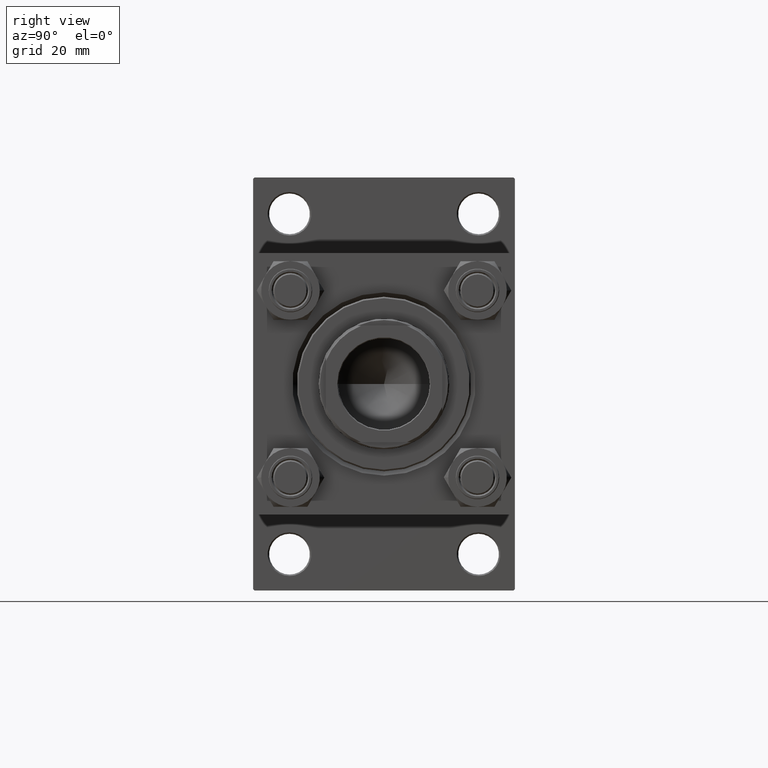
[diagram: clean part render]
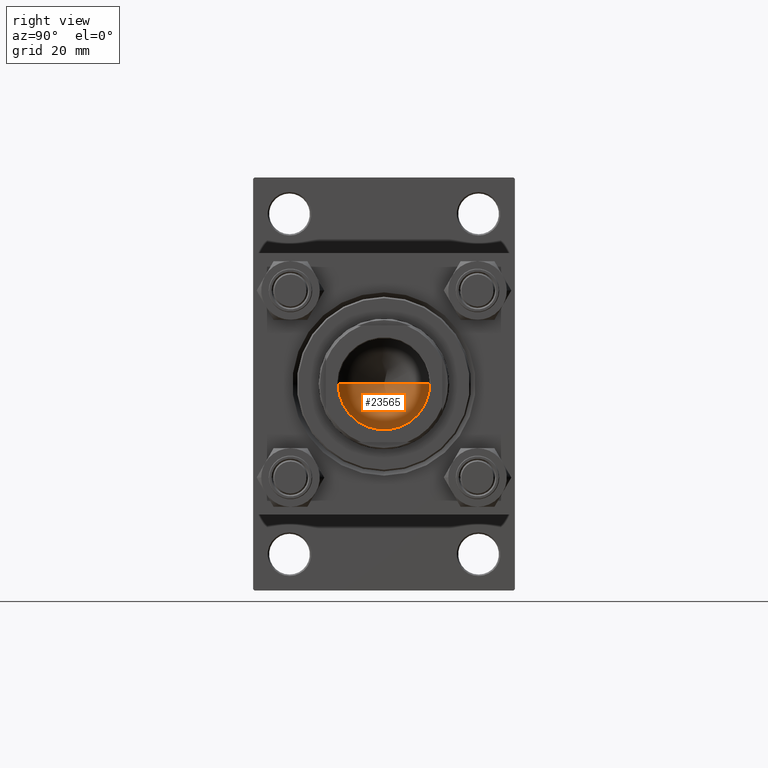
[diagram: same view with one face highlighted and labeled with its STEP entity id]
A machine part, right view. The second image highlights one B-rep face of the part: STEP entity #23565.
In plain terms, the highlighted conical surface has half-angle 59 deg.
Its self-contained STEP definition (entity closure, byte-faithful):
#1902 = CARTESIAN_POINT ( 'NONE',  ( -1.584115414415908206E-14, 0.000000000000000000, 85.53644525031592138 ) ) ;
#2390 = AXIS2_PLACEMENT_3D ( 'NONE', #41454, #25816, #41710 ) ;
#3417 = ORIENTED_EDGE ( 'NONE', *, *, #11954, .F. ) ;
#4929 = VERTEX_POINT ( 'NONE', #34229 ) ;
#5370 = DIRECTION ( 'NONE',  ( 0.8571673007021115565, 0.000000000000000000, 0.5150380749100554878 ) ) ;
#9623 = LINE ( 'NONE', #16222, #43265 ) ;
#11954 = EDGE_CURVE ( 'NONE', #16549, #27129, #9623, .T. ) ;
#13709 = CIRCLE ( 'NONE', #2390, 15.74999999999998934 ) ;
#14286 = ORIENTED_EDGE ( 'NONE', *, *, #23346, .T. ) ;
#16222 = CARTESIAN_POINT ( 'NONE',  ( -15.74999999999998934, 1.928818708657080161E-15, 95.00000000000001421 ) ) ;
#16549 = VERTEX_POINT ( 'NONE', #1902 ) ;
#20722 = DIRECTION ( 'NONE',  ( 1.000000000000000000, 0.000000000000000000, 0.000000000000000000 ) ) ;
#21392 = EDGE_CURVE ( 'NONE', #16549, #4929, #43760, .T. ) ;
#23346 = EDGE_CURVE ( 'NONE', #4929, #27129, #13709, .T. ) ;
#23565 = ADVANCED_FACE ( 'NONE', ( #31860 ), #37082, .F. ) ;
#24901 = CARTESIAN_POINT ( 'NONE',  ( -15.74999999999998934, 1.928818708657080161E-15, 95.00000000000001421 ) ) ;
#25816 = DIRECTION ( 'NONE',  ( -0.000000000000000000, -0.000000000000000000, 1.000000000000000000 ) ) ;
#25845 = VECTOR ( 'NONE', #5370, 1000.000000000000000 ) ;
#27129 = VERTEX_POINT ( 'NONE', #24901 ) ;
#31490 = AXIS2_PLACEMENT_3D ( 'NONE', #35888, #40179, #20722 ) ;
#31860 = FACE_OUTER_BOUND ( 'NONE', #41194, .T. ) ;
#34229 = CARTESIAN_POINT ( 'NONE',  ( 15.74999999999998934, 0.000000000000000000, 95.00000000000001421 ) ) ;
#34752 = ORIENTED_EDGE ( 'NONE', *, *, #21392, .T. ) ;
#35693 = CARTESIAN_POINT ( 'NONE',  ( 15.74999999999998934, 0.000000000000000000, 95.00000000000001421 ) ) ;
#35888 = CARTESIAN_POINT ( 'NONE',  ( 0.000000000000000000, 0.000000000000000000, 95.00000000000001421 ) ) ;
#37082 = CONICAL_SURFACE ( 'NONE', #31490, 15.74999999999998934, 1.029744258676652979 ) ;
#39467 = DIRECTION ( 'NONE',  ( -0.8571673007021115565, 1.049727191138617710E-16, 0.5150380749100554878 ) ) ;
#40179 = DIRECTION ( 'NONE',  ( -0.000000000000000000, -0.000000000000000000, 1.000000000000000000 ) ) ;
#41194 = EDGE_LOOP ( 'NONE', ( #3417, #34752, #14286 ) ) ;
#41454 = CARTESIAN_POINT ( 'NONE',  ( 0.000000000000000000, 0.000000000000000000, 95.00000000000001421 ) ) ;
#41710 = DIRECTION ( 'NONE',  ( 1.000000000000000000, 0.000000000000000000, 0.000000000000000000 ) ) ;
#43265 = VECTOR ( 'NONE', #39467, 1000.000000000000000 ) ;
#43760 = LINE ( 'NONE', #35693, #25845 ) ;